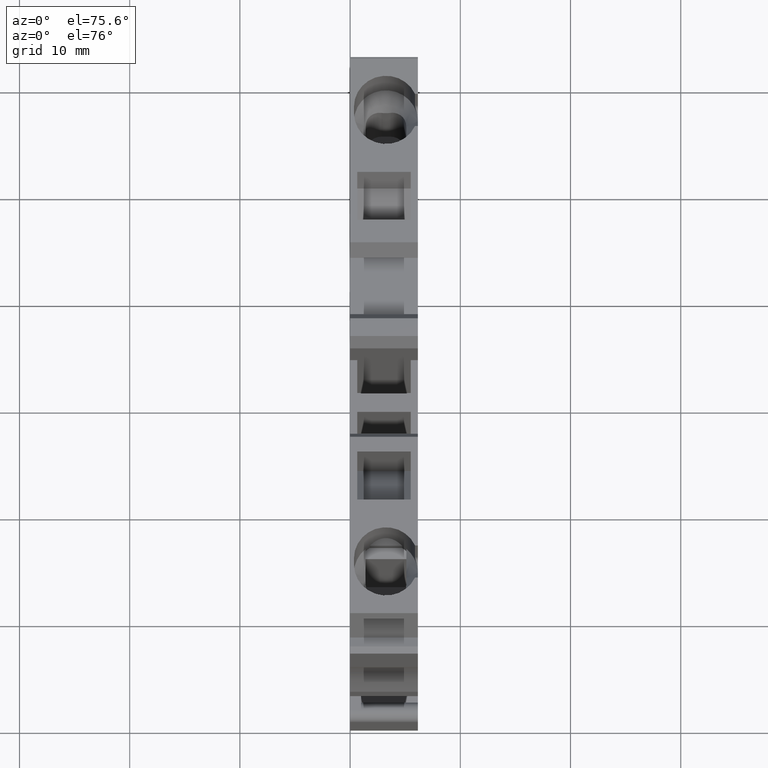
[diagram: clean part render]
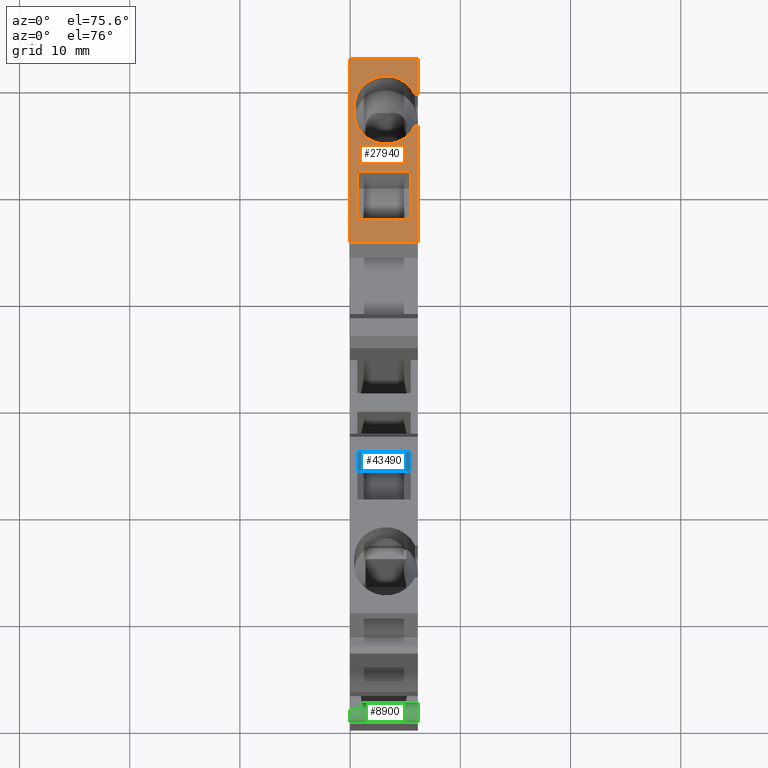
[diagram: same view with three faces highlighted in distinct colors, each labeled with its STEP entity id]
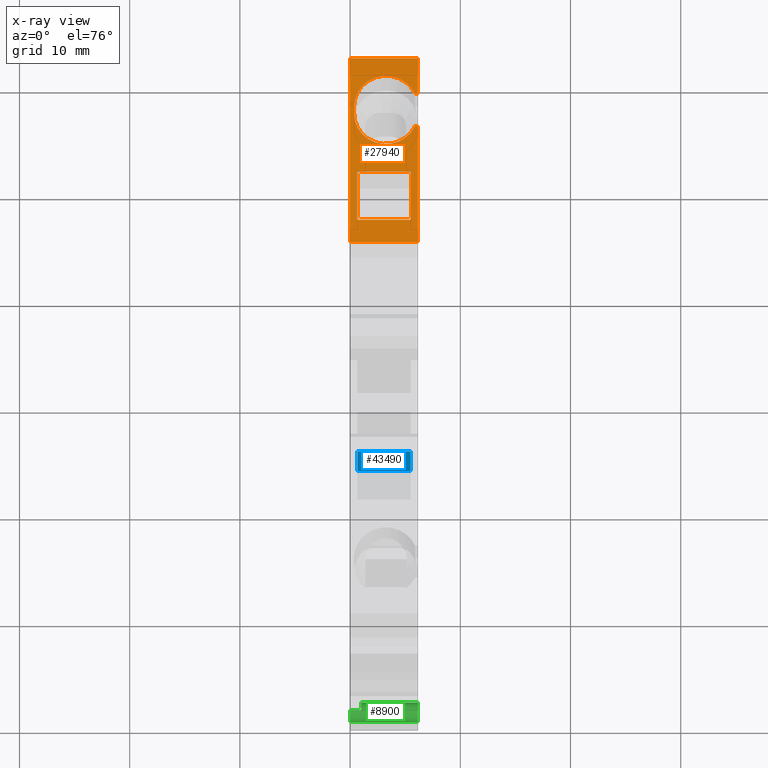
[diagram: x-ray of the same camera — body ghosted, the three highlighted faces saturated]
A machine part, auxiliary view with three faces highlighted in distinct colors.
The next image is the same camera in x-ray (body ghosted, the three faces saturated) — at least one of them is partly hidden behind the body in this view.
Their STEP definitions:

[orange] entity #27940 — the highlighted planar face has unit normal (0, 0, -1).
#3260=CARTESIAN_POINT('',(-10.6903456250223,20.0000000000002,
0.999999999999993));
#3270=VERTEX_POINT('',#3260);
#3300=CARTESIAN_POINT('',(-0.199999999999996,20.0000000000001,
0.999999999999993));
#3310=DIRECTION('',(-1.,0.,0.));
#3320=VECTOR('',#3310,1.);
#3330=LINE('',#3300,#3320);
#3340=CARTESIAN_POINT('',(0.200000000000006,20.0000000000002,
0.999999999999993));
#3350=VERTEX_POINT('',#3340);
#3360=EDGE_CURVE('',#3350,#3270,#3330,.T.);
#3920=CARTESIAN_POINT('',(3.19999999999991,20.0000000000002,
0.999999999999993));
#3930=VERTEX_POINT('',#3920);
#3960=CARTESIAN_POINT('',(6.53980577065209,20.0000000000002,
0.999999999999993));
#3970=VERTEX_POINT('',#3960);
#3980=EDGE_CURVE('',#3970,#3930,#3330,.T.);
#16190=CARTESIAN_POINT('',(1.40000000000003,20.0000000000002,-4.8));
#16200=VERTEX_POINT('',#16190);
#17830=CARTESIAN_POINT('',(0.200000000000006,20.0000000000002,
0.740075756488813));
#17840=VERTEX_POINT('',#17830);
#17870=CARTESIAN_POINT('',(1.40000000000002,20.0000000000002,-1.9));
#17880=DIRECTION('',(-3.80251385934116E-15,1.,2.77555756156289E-16));
#17890=DIRECTION('',(-1.,-3.80251385934116E-15,-6.70375147639541E-31));
#17900=AXIS2_PLACEMENT_3D('',#17870,#17880,#17890);
#17910=CIRCLE('',#17900,2.9);
#17920=EDGE_CURVE('',#16200,#17840,#17910,.T.);
#18610=CARTESIAN_POINT('',(1.99999999999991,20.0000000000002,-4.8));
#18620=VERTEX_POINT('',#18610);
#18720=CARTESIAN_POINT('',(-18.224193656789,20.0000000000002,-4.8));
#18730=DIRECTION('',(1.,0.,-3.7368864981958E-17));
#18740=VECTOR('',#18730,1.);
#18750=LINE('',#18720,#18740);
#18760=EDGE_CURVE('',#16200,#18620,#18750,.T.);
#27060=CARTESIAN_POINT('',(-10.0374999999983,20.0000000000002,
0.999999999999993));
#27070=DIRECTION('',(-0.,-1.,-0.));
#27080=DIRECTION('',(-1.,0.,0.));
#27090=AXIS2_PLACEMENT_3D('',#27060,#27070,#27080);
#27100=PLANE('',#27090);
#27110=CARTESIAN_POINT('',(-8.6000000000008,20.0000000000002,
0.999999999999993));
#27120=DIRECTION('',(0.,0.,-1.));
#27130=VECTOR('',#27120,1.);
#27140=LINE('',#27110,#27130);
#27150=CARTESIAN_POINT('',(-8.6000000000008,20.0000000000002,
0.349999999999993));
#27160=VERTEX_POINT('',#27150);
#27170=CARTESIAN_POINT('',(-8.6000000000008,20.0000000000002,
-4.50000000000001));
#27180=VERTEX_POINT('',#27170);
#27190=EDGE_CURVE('',#27160,#27180,#27140,.T.);
#27200=ORIENTED_EDGE('',*,*,#27190,.T.);
#27210=CARTESIAN_POINT('',(-18.224193656789,20.0000000000002,
0.349999999999993));
#27220=DIRECTION('',(-1.,0.,0.));
#27230=VECTOR('',#27220,1.);
#27240=LINE('',#27210,#27230);
#27250=CARTESIAN_POINT('',(-4.1000000000008,20.0000000000002,
0.349999999999993));
#27260=VERTEX_POINT('',#27250);
#27270=EDGE_CURVE('',#27260,#27160,#27240,.T.);
#27280=ORIENTED_EDGE('',*,*,#27270,.T.);
#27290=CARTESIAN_POINT('',(-4.1000000000007,20.0000000000002,
0.999999999999993));
#27300=DIRECTION('',(0.,0.,1.));
#27310=VECTOR('',#27300,1.);
#27320=LINE('',#27290,#27310);
#27330=CARTESIAN_POINT('',(-4.1000000000008,20.0000000000002,
-4.50000000000001));
#27340=VERTEX_POINT('',#27330);
#27350=EDGE_CURVE('',#27340,#27260,#27320,.T.);
#27360=ORIENTED_EDGE('',*,*,#27350,.T.);
#27370=CARTESIAN_POINT('',(-18.224193656789,20.0000000000002,
-4.50000000000001));
#27380=DIRECTION('',(-1.,0.,0.));
#27390=VECTOR('',#27380,1.);
#27400=LINE('',#27370,#27390);
#27410=EDGE_CURVE('',#27340,#27180,#27400,.T.);
#27420=ORIENTED_EDGE('',*,*,#27410,.F.);
#27430=EDGE_LOOP('',(#27420,#27360,#27280,#27200));
#27440=FACE_BOUND('',#27430,.T.);
#27450=CARTESIAN_POINT('',(6.53980577065209,20.0000000000001,
0.999999999999993));
#27460=DIRECTION('',(0.,0.,-1.));
#27470=VECTOR('',#27460,1.);
#27480=LINE('',#27450,#27470);
#27490=CARTESIAN_POINT('',(6.53980577065209,20.0000000000002,
-5.15000000000001));
#27500=VERTEX_POINT('',#27490);
#27510=EDGE_CURVE('',#3970,#27500,#27480,.T.);
#27520=ORIENTED_EDGE('',*,*,#27510,.T.);
#27530=ORIENTED_EDGE('',*,*,#3980,.F.);
#27540=CARTESIAN_POINT('',(3.19999999999991,20.0000000000002,
0.999999999999993));
#27550=DIRECTION('',(-4.15561797479059E-30,0.,1.));
#27560=VECTOR('',#27550,1.);
#27570=LINE('',#27540,#27560);
#27580=CARTESIAN_POINT('',(3.19999999999991,20.0000000000002,
0.740075756488804));
#27590=VERTEX_POINT('',#27580);
#27600=EDGE_CURVE('',#27590,#3930,#27570,.T.);
#27610=ORIENTED_EDGE('',*,*,#27600,.T.);
#27620=CARTESIAN_POINT('',(1.99999999999988,20.0000000000002,-1.9));
#27630=DIRECTION('',(1.80133685745432E-14,-1.,-2.77555756156289E-16));
#27640=DIRECTION('',(1.,1.80133685745432E-14,3.03665480931701E-30));
#27650=AXIS2_PLACEMENT_3D('',#27620,#27630,#27640);
#27660=CIRCLE('',#27650,2.9);
#27670=EDGE_CURVE('',#18620,#27590,#27660,.T.);
#27680=ORIENTED_EDGE('',*,*,#27670,.T.);
#27690=ORIENTED_EDGE('',*,*,#18760,.T.);
#27700=ORIENTED_EDGE('',*,*,#17920,.F.);
#27710=CARTESIAN_POINT('',(0.200000000000006,20.0000000000002,
0.999999999999993));
#27720=DIRECTION('',(4.48588017834043E-31,0.,1.));
#27730=VECTOR('',#27720,1.);
#27740=LINE('',#27710,#27730);
#27750=EDGE_CURVE('',#17840,#3350,#27740,.T.);
#27760=ORIENTED_EDGE('',*,*,#27750,.F.);
#27770=ORIENTED_EDGE('',*,*,#3360,.F.);
#27780=CARTESIAN_POINT('',(-10.6903456250223,20.0000000000002,
0.999999999999993));
#27790=DIRECTION('',(0.,0.,1.));
#27800=VECTOR('',#27790,1.);
#27810=LINE('',#27780,#27800);
#27820=CARTESIAN_POINT('',(-10.6903456250223,20.0000000000002,
-5.15000000000001));
#27830=VERTEX_POINT('',#27820);
#27840=EDGE_CURVE('',#27830,#3270,#27810,.T.);
#27850=ORIENTED_EDGE('',*,*,#27840,.T.);
#27860=CARTESIAN_POINT('',(-18.224193656789,20.0000000000002,
-5.15000000000001));
#27870=DIRECTION('',(-1.,0.,0.));
#27880=VECTOR('',#27870,1.);
#27890=LINE('',#27860,#27880);
#27900=EDGE_CURVE('',#27500,#27830,#27890,.T.);
#27910=ORIENTED_EDGE('',*,*,#27900,.T.);
#27920=EDGE_LOOP('',(#27910,#27850,#27770,#27760,#27700,#27690,#27680,
#27610,#27530,#27520));
#27930=FACE_OUTER_BOUND('',#27920,.T.);
#27940=ADVANCED_FACE('',(#27440,#27930),#27100,.F.);

[blue] entity #43490 — the highlighted planar face has unit normal (0, 1, 0).
#41940=CARTESIAN_POINT('',(-30.3,20.0000000000001,0.999999999999993));
#41950=DIRECTION('',(0.,0.,1.));
#41960=VECTOR('',#41950,1.);
#41970=LINE('',#41940,#41960);
#41980=CARTESIAN_POINT('',(-30.3,20.0000000000001,-4.50000000000001));
#41990=VERTEX_POINT('',#41980);
#42000=CARTESIAN_POINT('',(-30.3,20.0000000000001,0.349999999999993));
#42010=VERTEX_POINT('',#42000);
#42020=EDGE_CURVE('',#41990,#42010,#41970,.T.);
#43050=CARTESIAN_POINT('',(-30.3,12.8899494936608,0.349999999999993));
#43060=VERTEX_POINT('',#43050);
#43090=CARTESIAN_POINT('',(-30.3,-4.9382720135327E-13,0.349999999999993)
);
#43100=DIRECTION('',(8.09249748558821E-17,1.,0.));
#43110=VECTOR('',#43100,1.);
#43120=LINE('',#43090,#43110);
#43130=EDGE_CURVE('',#43060,#42010,#43120,.T.);
#43260=CARTESIAN_POINT('',(-30.3,19.9999999999997,-4.50000000000001));
#43270=DIRECTION('',(1.,-8.09249748558821E-17,0.));
#43280=DIRECTION('',(-8.09249748558821E-17,-1.,0.));
#43290=AXIS2_PLACEMENT_3D('',#43260,#43270,#43280);
#43300=PLANE('',#43290);
#43310=CARTESIAN_POINT('',(-30.3,-4.9382720135327E-13,-4.50000000000001)
);
#43320=DIRECTION('',(8.09249748558821E-17,1.,0.));
#43330=VECTOR('',#43320,1.);
#43340=LINE('',#43310,#43330);
#43350=CARTESIAN_POINT('',(-30.3,12.8899494936608,-4.50000000000001));
#43360=VERTEX_POINT('',#43350);
#43370=EDGE_CURVE('',#43360,#41990,#43340,.T.);
#43380=ORIENTED_EDGE('',*,*,#43370,.F.);
#43390=ORIENTED_EDGE('',*,*,#42020,.F.);
#43400=ORIENTED_EDGE('',*,*,#43130,.T.);
#43410=CARTESIAN_POINT('',(-30.3,12.8899494936608,-4.50000000000001));
#43420=DIRECTION('',(0.,0.,1.));
#43430=VECTOR('',#43420,1.);
#43440=LINE('',#43410,#43430);
#43450=EDGE_CURVE('',#43360,#43060,#43440,.T.);
#43460=ORIENTED_EDGE('',*,*,#43450,.T.);
#43470=EDGE_LOOP('',(#43460,#43400,#43390,#43380));
#43480=FACE_OUTER_BOUND('',#43470,.T.);
#43490=ADVANCED_FACE('',(#43480),#43300,.F.);

[green] entity #8900 — the highlighted cylindrical surface (edge-blend (fillet) strip) has radius 0.9 mm, axis along (1, -0, 0).
#60=CARTESIAN_POINT('',(-46.4999999999994,-12.1500000000002,
0.999999999999993));
#70=DIRECTION('',(0.,0.,1.));
#80=DIRECTION('',(1.,0.,0.));
#90=AXIS2_PLACEMENT_3D('',#60,#70,#80);
#100=CIRCLE('',#90,0.899999999999826);
#110=CARTESIAN_POINT('',(-45.9,-12.8208203932504,0.999999999999993));
#120=VERTEX_POINT('',#110);
#130=CARTESIAN_POINT('',(-47.4,-12.1500000000002,0.999999999999993));
#140=VERTEX_POINT('',#130);
#150=EDGE_CURVE('',#120,#140,#100,.T.);
#7500=CARTESIAN_POINT('',(-46.4999999999994,-11.2500000000004,-4.15));
#7510=VERTEX_POINT('',#7500);
#7760=CARTESIAN_POINT('',(-45.9,-12.8208203932504,-4.15));
#7770=VERTEX_POINT('',#7760);
#7800=CARTESIAN_POINT('',(-46.4999999999994,-12.1500000000002,-4.15));
#7810=DIRECTION('',(0.,0.,1.));
#7820=DIRECTION('',(1.,0.,0.));
#7830=AXIS2_PLACEMENT_3D('',#7800,#7810,#7820);
#7840=CIRCLE('',#7830,0.899999999999826);
#7850=EDGE_CURVE('',#7770,#7510,#7840,.T.);
#8060=CARTESIAN_POINT('',(-46.4999999999994,-11.2500000000004,
-5.15000000000001));
#8070=VERTEX_POINT('',#8060);
#8190=CARTESIAN_POINT('',(-46.4999999999994,-11.2500000000004,
0.999999999999993));
#8200=DIRECTION('',(0.,0.,1.));
#8210=VECTOR('',#8200,1.);
#8220=LINE('',#8190,#8210);
#8230=EDGE_CURVE('',#8070,#7510,#8220,.T.);
#8470=CARTESIAN_POINT('',(-45.9,-12.8208203932504,0.999999999999993));
#8480=DIRECTION('',(0.,0.,-1.));
#8490=VECTOR('',#8480,1.);
#8500=LINE('',#8470,#8490);
#8510=EDGE_CURVE('',#120,#7770,#8500,.T.);
#8640=CARTESIAN_POINT('',(-46.4999999999994,-12.1500000000002,
0.999999999999993));
#8650=DIRECTION('',(0.,0.,1.));
#8660=DIRECTION('',(1.,0.,0.));
#8670=AXIS2_PLACEMENT_3D('',#8640,#8650,#8660);
#8680=CYLINDRICAL_SURFACE('',#8670,0.899999999999826);
#8690=ORIENTED_EDGE('',*,*,#7850,.T.);
#8700=ORIENTED_EDGE('',*,*,#8510,.T.);
#8710=ORIENTED_EDGE('',*,*,#150,.F.);
#8720=CARTESIAN_POINT('',(-47.4,-12.1500000000002,0.999999999999993));
#8730=DIRECTION('',(0.,0.,-1.));
#8740=VECTOR('',#8730,1.);
#8750=LINE('',#8720,#8740);
#8760=CARTESIAN_POINT('',(-47.4,-12.1500000000002,-5.15000000000001));
#8770=VERTEX_POINT('',#8760);
#8780=EDGE_CURVE('',#140,#8770,#8750,.T.);
#8790=ORIENTED_EDGE('',*,*,#8780,.F.);
#8800=CARTESIAN_POINT('',(-46.4999999999994,-12.1500000000002,
-5.15000000000001));
#8810=DIRECTION('',(0.,0.,1.));
#8820=DIRECTION('',(1.,0.,0.));
#8830=AXIS2_PLACEMENT_3D('',#8800,#8810,#8820);
#8840=CIRCLE('',#8830,0.899999999999826);
#8850=EDGE_CURVE('',#8070,#8770,#8840,.T.);
#8860=ORIENTED_EDGE('',*,*,#8850,.T.);
#8870=ORIENTED_EDGE('',*,*,#8230,.F.);
#8880=EDGE_LOOP('',(#8870,#8860,#8790,#8710,#8700,#8690));
#8890=FACE_OUTER_BOUND('',#8880,.T.);
#8900=ADVANCED_FACE('',(#8890),#8680,.T.);